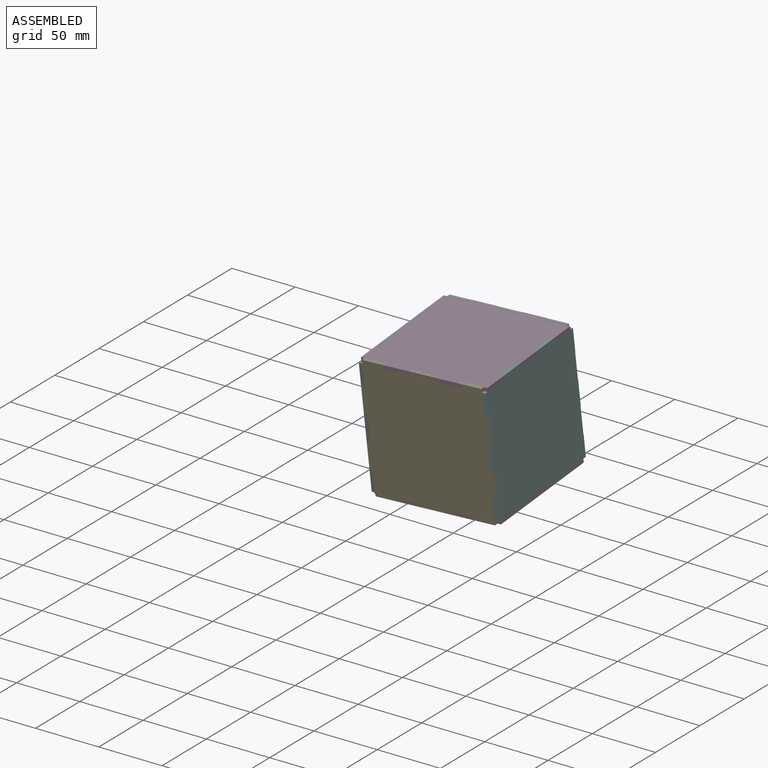
[diagram: assembled view]
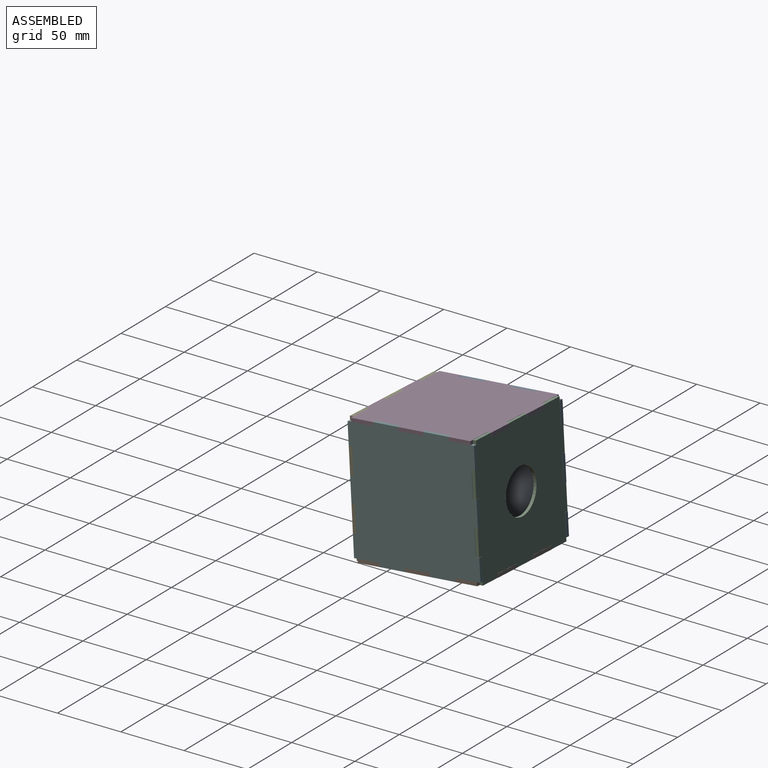
[diagram: assembled view, second angle]
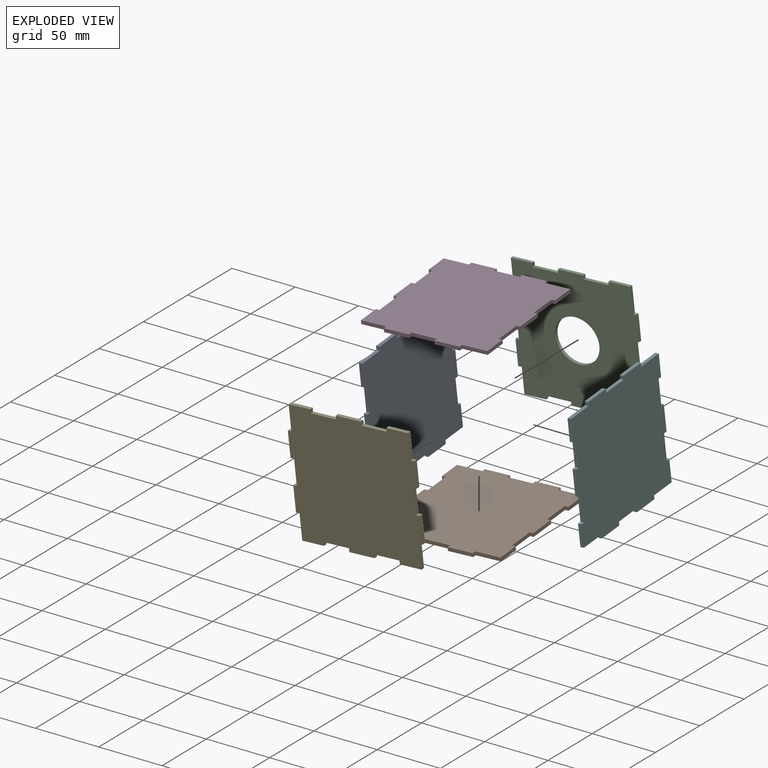
[diagram: exploded view]
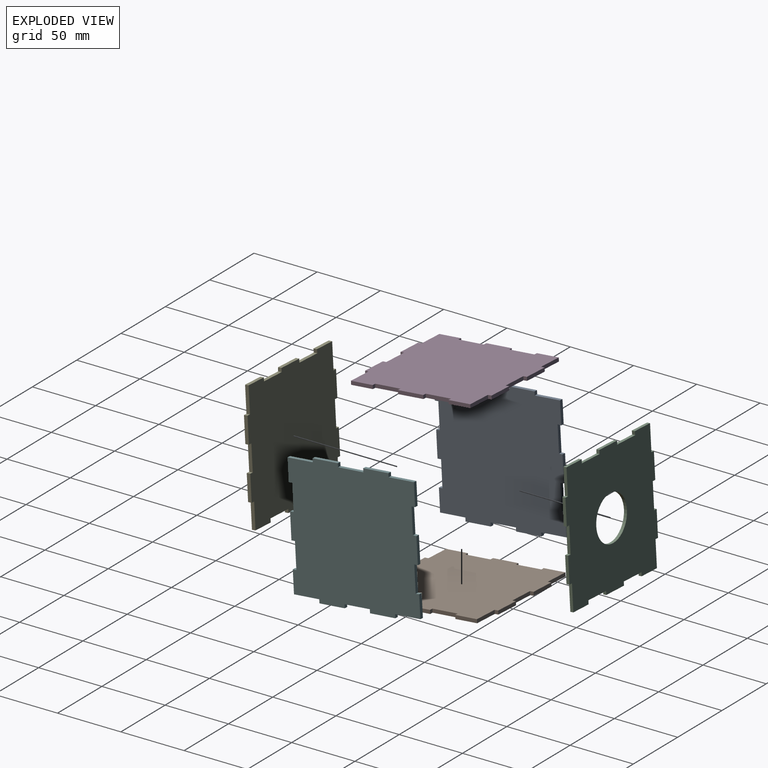
[diagram: exploded view, second angle]
ASSEMBLY  parts=6 mates=5
PART A: 38 faces, bbox 100x2.8x100 mm
  f0: plane 20x2.8mm, normal (0,0,1), area 56mm2, adj f10,f11,f19,f20
  f1: plane 20x2.8mm, normal (0,0,1), area 56mm2, adj f10,f11,f13,f17
  f2: plane 17.2x2.8mm, normal (-1,0,0), area 48.2mm2, adj f10,f11,f34,f36
  f3: plane 20x2.8mm, normal (-1,0,0), area 56mm2, adj f10,f11,f15,f35
  f4: plane 17.2x2.8mm, normal (-1,0,0), area 48.2mm2, adj f10,f11,f12,f14
  f5: plane 20x2.8mm, normal (0,0,-1), area 56mm2, adj f10,f11,f30,f33
  f6: plane 20x2.8mm, normal (0,0,-1), area 56mm2, adj f10,f11,f28,f31
  f7: plane 17.2x2.8mm, normal (1,0,0), area 48.2mm2, adj f10,f11,f25,f29
  f8: plane 20x2.8mm, normal (1,0,0), area 56mm2, adj f10,f11,f22,f26
  f9: plane 17.2x2.8mm, normal (1,0,0), area 48.2mm2, adj f10,f11,f21,f23
  f10: plane 100x100mm, normal (0,-1,0), area 9439.8mm2, adj f0,f1,f2,f3,f4,f5,f6,f7
  f11: plane 100x100mm, normal (0,1,0), area 9439.8mm2, adj f0,f1,f2,f3,f4,f5,f6,f7
  f12: plane 20x2.8mm, normal (0,0,1), area 56mm2, adj f4,f10,f11,f13
  f13: plane 2.8x2.8mm, normal (-1,0,0), area 7.8mm2, adj f1,f10,f11,f12
  f14: plane 2.8x2.8mm, normal (0,0,-1), area 7.8mm2, adj f4,f10,f11,f16
  f15: plane 2.8x2.8mm, normal (-0.05,0,1), area 7.8mm2, adj f3,f10,f11,f16
  f16: plane 19.86x2.8mm, normal (-1,0,0), area 55.6mm2, adj f10,f11,f14,f15
  f17: plane 2.8x2.8mm, normal (1,0,0), area 7.8mm2, adj f1,f10,f11,f18
  f18: plane 20.03x2.8mm, normal (0,0,1), area 56.1mm2, adj f10,f11,f17,f19
  f19: plane 2.8x2.8mm, normal (-1,0,-0.01), area 7.8mm2, adj f0,f10,f11,f18
  f20: plane 2.8x2.8mm, normal (1,0,0), area 7.8mm2, adj f0,f10,f11,f21
  f21: plane 20x2.8mm, normal (0,0,1), area 56mm2, adj f9,f10,f11,f20
  f22: plane 2.8x2.8mm, normal (0,0,1), area 7.8mm2, adj f8,f10,f11,f24
  f23: plane 2.8x2.8mm, normal (0,0,-1), area 7.8mm2, adj f9,f10,f11,f24
  f24: plane 20x2.8mm, normal (1,0,0), area 56mm2, adj f10,f11,f22,f23
  f25: plane 2.8x2.8mm, normal (0,0,1), area 7.8mm2, adj f7,f10,f11,f27
  f26: plane 2.8x2.8mm, normal (0,0,-1), area 7.8mm2, adj f8,f10,f11,f27
  f27: plane 20x2.8mm, normal (1,0,0), area 56mm2, adj f10,f11,f25,f26
  f28: plane 2.8x2.8mm, normal (1,0,0), area 7.8mm2, adj f6,f10,f11,f29
  f29: plane 20x2.8mm, normal (0,0,-1), area 56mm2, adj f7,f10,f11,f28
  f30: plane 2.8x2.8mm, normal (1,0,0), area 7.8mm2, adj f5,f10,f11,f32
  f31: plane 2.8x2.8mm, normal (-1,0,0), area 7.8mm2, adj f6,f10,f11,f32
  f32: plane 20x2.8mm, normal (0,0,-1), area 56mm2, adj f10,f11,f30,f31
  f33: plane 2.8x2.8mm, normal (-1,0,0), area 7.8mm2, adj f5,f10,f11,f34
  f34: plane 20x2.8mm, normal (0,0,-1), area 56mm2, adj f2,f10,f11,f33
  f35: plane 2.8x2.8mm, normal (0,0,-1), area 7.8mm2, adj f3,f10,f11,f37
  f36: plane 2.8x2.8mm, normal (0.09,0,1), area 7.9mm2, adj f2,f10,f11,f37
  f37: plane 20.24x2.8mm, normal (-1,0,0), area 56.7mm2, adj f10,f11,f35,f36
PART B: same geometry as A
PART C: 39 faces, bbox 100x2.4x100 mm
  f0: plane 20x2.4mm, normal (0,0,1), area 48mm2, adj f10,f11,f19,f20
  f1: plane 20x2.4mm, normal (0,0,1), area 48mm2, adj f10,f11,f13,f17
  f2: plane 17.2x2.4mm, normal (-1,0,0), area 41.3mm2, adj f10,f11,f34,f36
  f3: plane 20x2.4mm, normal (-1,0,0), area 48mm2, adj f10,f11,f15,f35
  f4: plane 17.2x2.4mm, normal (-1,0,0), area 41.3mm2, adj f10,f11,f12,f14
  f5: plane 20x2.4mm, normal (0,0,-1), area 48mm2, adj f10,f11,f30,f33
  f6: plane 20x2.4mm, normal (0,0,-1), area 48mm2, adj f10,f11,f28,f31
  f7: plane 17.2x2.4mm, normal (1,0,0), area 41.3mm2, adj f10,f11,f25,f29
  f8: plane 20x2.4mm, normal (1,0,0), area 48mm2, adj f10,f11,f22,f26
  f9: plane 17.2x2.4mm, normal (1,0,0), area 41.3mm2, adj f10,f11,f21,f23
  f10: plane 100x100mm, normal (0,-1,0), area 8492.4mm2, adj f0,f1,f2,f3,f4,f5,f6,f7
  f11: plane 100x100mm, normal (0,1,0), area 8492.4mm2, adj f0,f1,f2,f3,f4,f5,f6,f7
  f12: plane 20x2.4mm, normal (0,0,1), area 48mm2, adj f4,f10,f11,f13
  f13: plane 2.8x2.4mm, normal (-1,0,0), area 6.7mm2, adj f1,f10,f11,f12
  f14: plane 2.8x2.4mm, normal (0,0,-1), area 6.7mm2, adj f4,f10,f11,f16
  f15: plane 2.8x2.4mm, normal (-0.05,0,1), area 6.7mm2, adj f3,f10,f11,f16
  f16: plane 19.86x2.4mm, normal (-1,0,0), area 47.7mm2, adj f10,f11,f14,f15
  f17: plane 2.8x2.4mm, normal (1,0,0), area 6.7mm2, adj f1,f10,f11,f18
  f18: plane 20.03x2.4mm, normal (0,0,1), area 48.1mm2, adj f10,f11,f17,f19
  f19: plane 2.8x2.4mm, normal (-1,0,-0.01), area 6.7mm2, adj f0,f10,f11,f18
  f20: plane 2.8x2.4mm, normal (1,0,0), area 6.7mm2, adj f0,f10,f11,f21
  f21: plane 20x2.4mm, normal (0,0,1), area 48mm2, adj f9,f10,f11,f20
  f22: plane 2.8x2.4mm, normal (0,0,1), area 6.7mm2, adj f8,f10,f11,f24
  f23: plane 2.8x2.4mm, normal (0,0,-1), area 6.7mm2, adj f9,f10,f11,f24
  f24: plane 20x2.4mm, normal (1,0,0), area 48mm2, adj f10,f11,f22,f23
  f25: plane 2.8x2.4mm, normal (0,0,1), area 6.7mm2, adj f7,f10,f11,f27
  f26: plane 2.8x2.4mm, normal (0,0,-1), area 6.7mm2, adj f8,f10,f11,f27
  f27: plane 20x2.4mm, normal (1,0,0), area 48mm2, adj f10,f11,f25,f26
  f28: plane 2.8x2.4mm, normal (1,0,0), area 6.7mm2, adj f6,f10,f11,f29
  f29: plane 20x2.4mm, normal (0,0,-1), area 48mm2, adj f7,f10,f11,f28
  f30: plane 2.8x2.4mm, normal (1,0,0), area 6.7mm2, adj f5,f10,f11,f32
  f31: plane 2.8x2.4mm, normal (-1,0,0), area 6.7mm2, adj f6,f10,f11,f32
  f32: plane 20x2.4mm, normal (0,0,-1), area 48mm2, adj f10,f11,f30,f31
  f33: plane 2.8x2.4mm, normal (-1,0,0), area 6.7mm2, adj f5,f10,f11,f34
  f34: plane 20x2.4mm, normal (0,0,-1), area 48mm2, adj f2,f10,f11,f33
  f35: plane 2.8x2.4mm, normal (0,0,-1), area 6.7mm2, adj f3,f10,f11,f37
  f36: plane 2.8x2.4mm, normal (0.09,0,1), area 6.7mm2, adj f2,f10,f11,f37
  f37: plane 20.24x2.4mm, normal (-1,0,0), area 48.6mm2, adj f10,f11,f35,f36
  f38: cylinder r=17.37mm len=34.73mm, axis (0,-1,0), area 261.9mm2, adj f10,f11
PART D: same geometry as A
PART E: same geometry as A
PART F: same geometry as A
PLACE A rot(axis=(-0.71,0.71,0.01),174.6deg) t=(7.4,69.49,-22.23)mm
PLACE B rot(axis=(1,-0.02,0.02),95deg) t=(51.97,58.5,-61.28)mm
PLACE C rot(axis=(0.04,1,0.05),87.4deg) t=(63.69,110.54,-1.38)mm
PLACE D rot(axis=(-1,-0.03,-0.02),85deg) t=(47.48,64.64,33.91)mm
PLACE E rot(axis=(0.04,1,0.05),87.4deg) t=(64.09,13.91,-9.82)mm
PLACE F rot(axis=(0.07,0.02,-1),90deg) t=(106.62,68.24,-3.18)mm
MATE fastened E.f26 <-> B.f17  axis (-1,0,-0.05) through (49.53,17.39,-66.4)mm
MATE fastened A.f25 <-> E.f33  axis (0.05,0.09,-1) through (7.29,10.54,10)mm
MATE fastened F.f17 <-> D.f22  axis (0,-1,-0.09) through (103.27,67.3,38.18)mm
MATE fastened B.f31 <-> C.f22  axis (-1,0,-0.05) through (69.11,114.22,-57)mm
MATE fastened B.f26 <-> F.f30  axis (0,1,0.09) through (107.82,75.77,-58.54)mm
